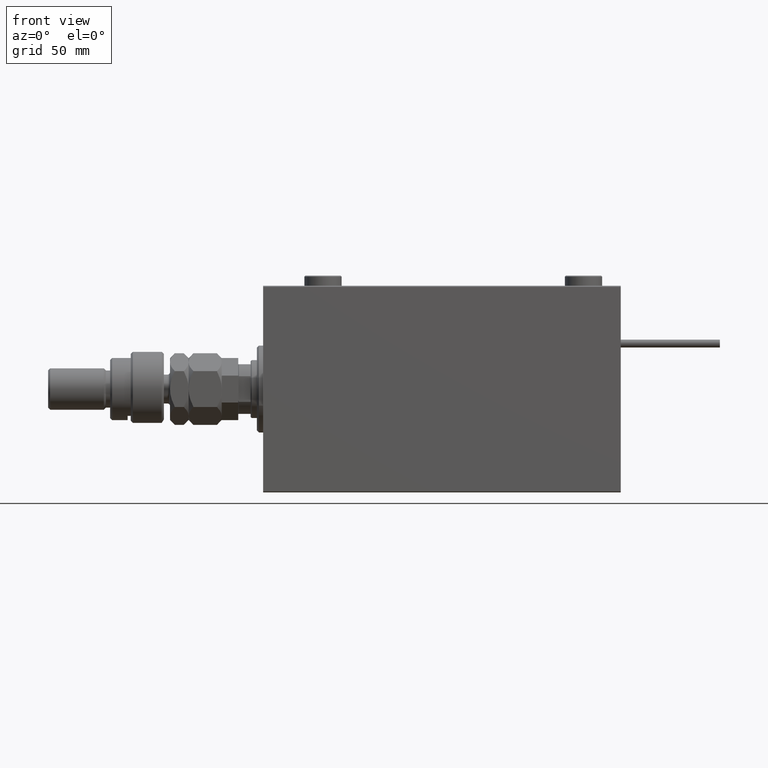
[diagram: clean part render]
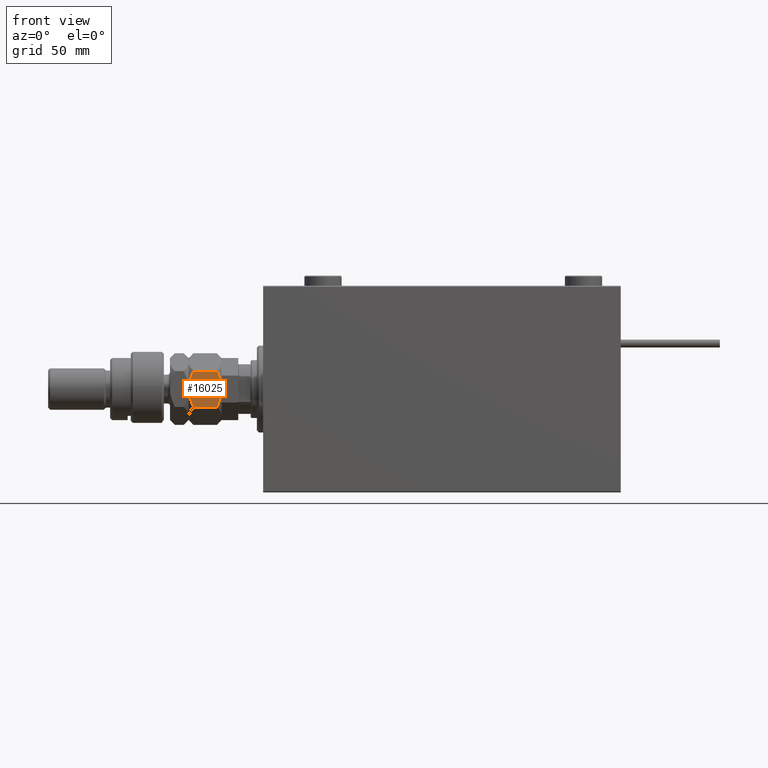
[diagram: same view with one face highlighted and labeled with its STEP entity id]
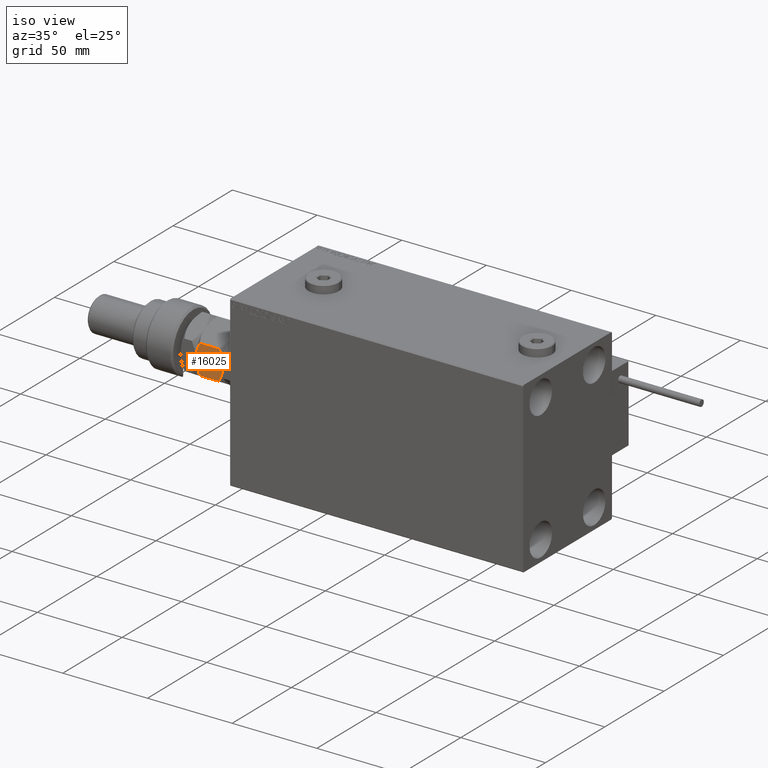
[diagram: same view with one face highlighted and labeled with its STEP entity id]
A machine part, front view. The second image highlights one B-rep face of the part: STEP entity #16025.
A second angle (iso view) of the same face is appended — the face is thin or edge-on in the first view.
In plain terms, the highlighted planar face has unit normal (0, 1, -0).
Its self-contained STEP definition (entity closure, byte-faithful):
#7 = LINE ( 'NONE', #4969, #49734 ) ;
#186 = CARTESIAN_POINT ( 'NONE',  ( 8.823580389329300999, -12.22621156269320331, 0.05953537397470176629 ) ) ;
#723 = CARTESIAN_POINT ( 'NONE',  ( 13.82389157469335750, -9.339280553791367012, 1.641481559741792884 ) ) ;
#746 = CARTESIAN_POINT ( 'NONE',  ( -2.796947266322166691E-15, -17.32050807568877104, 2.320508075688761718 ) ) ;
#984 = CARTESIAN_POINT ( 'NONE',  ( 15.00000000000000000, -8.660254037844389075, 2.320508075688767047 ) ) ;
#1349 = CARTESIAN_POINT ( 'NONE',  ( 7.499999999999993783, -12.99038105676658006, 16.00000000000000000 ) ) ;
#1560 = CARTESIAN_POINT ( 'NONE',  ( 4.913081180497406386, -14.48393933357810681, 0.2303299219392160313 ) ) ;
#3187 = EDGE_CURVE ( 'NONE', #19721, #53869, #35648, .T. ) ;
#4546 = CARTESIAN_POINT ( 'NONE',  ( 1.176108425306638505, -16.64148155974179488, 14.35851844025821755 ) ) ;
#4969 = CARTESIAN_POINT ( 'NONE',  ( 15.00000000000000000, -8.660254037844389075, 16.00000000000000000 ) ) ;
#5255 = DIRECTION ( 'NONE',  ( -0.8660254037844388186, -0.4999999999999996669, 0.000000000000000000 ) ) ;
#6013 = VECTOR ( 'NONE', #32910, 1000.000000000000000 ) ;
#7566 = CARTESIAN_POINT ( 'NONE',  ( -3.035766082959412415E-15, -17.32050807568877104, 16.00000000000000000 ) ) ;
#9386 = CARTESIAN_POINT ( 'NONE',  ( -3.035766082959412415E-15, -17.32050807568877104, 16.00000000000000000 ) ) ;
#10038 = ORIENTED_EDGE ( 'NONE', *, *, #11166, .F. ) ;
#10160 = ORIENTED_EDGE ( 'NONE', *, *, #3187, .F. ) ;
#11166 = EDGE_CURVE ( 'NONE', #53869, #20118, #51568, .T. ) ;
#11307 = ORIENTED_EDGE ( 'NONE', *, *, #26295, .F. ) ;
#12049 = EDGE_CURVE ( 'NONE', #14081, #19721, #7, .T. ) ;
#13200 = CARTESIAN_POINT ( 'NONE',  ( 12.61607045183964360, -10.03661640420387080, 14.93952096862912171 ) ) ;
#13666 = CARTESIAN_POINT ( 'NONE',  ( 7.499999999999994671, -12.99038105676658184, 0.000000000000000000 ) ) ;
#13895 = ORIENTED_EDGE ( 'NONE', *, *, #27859, .T. ) ;
#14081 = VERTEX_POINT ( 'NONE', #22831 ) ;
#15985 = ORIENTED_EDGE ( 'NONE', *, *, #41047, .F. ) ;
#16025 = ADVANCED_FACE ( 'NONE', ( #43261 ), #17640, .F. ) ;
#16835 = CARTESIAN_POINT ( 'NONE',  ( 7.499999999999994671, -12.99038105676658184, 0.000000000000000000 ) ) ;
#16935 = CARTESIAN_POINT ( 'NONE',  ( 4.881674457977372761, -14.50207201327941320, 15.71619733805371411 ) ) ;
#17474 = CARTESIAN_POINT ( 'NONE',  ( 6.176419610670694560, -13.75455055083996214, 15.94046462602530312 ) ) ;
#17640 = PLANE ( 'NONE',  #49892 ) ;
#17796 = CARTESIAN_POINT ( 'NONE',  ( 10.11832554202262102, -11.47869010025374870, 0.2838026619462938327 ) ) ;
#18259 = CARTESIAN_POINT ( 'NONE',  ( -2.796947266322166691E-15, -17.32050807568877104, 2.320508075688761718 ) ) ;
#18724 = CARTESIAN_POINT ( 'NONE',  ( 15.00000000000000000, -8.660254037844389075, 2.320508075688767047 ) ) ;
#19721 = VERTEX_POINT ( 'NONE', #18724 ) ;
#20118 = VERTEX_POINT ( 'NONE', #18259 ) ;
#22831 = CARTESIAN_POINT ( 'NONE',  ( 15.00000000000000000, -8.660254037844389075, 13.67949192431123961 ) ) ;
#24538 = VERTEX_POINT ( 'NONE', #30351 ) ;
#25525 = CARTESIAN_POINT ( 'NONE',  ( 12.62116548881249756, -10.03367478323606754, 1.064486067744006892 ) ) ;
#25876 = CARTESIAN_POINT ( 'NONE',  ( 15.00000000000000000, -8.660254037844389075, 13.67949192431123961 ) ) ;
#26295 = EDGE_CURVE ( 'NONE', #52081, #24538, #38458, .T. ) ;
#26735 = DIRECTION ( 'NONE',  ( -0.4999999999999996669, 0.8660254037844388186, 0.000000000000000000 ) ) ;
#27859 = EDGE_CURVE ( 'NONE', #52081, #20118, #49430, .T. ) ;
#29669 = B_SPLINE_CURVE_WITH_KNOTS ( 'NONE', 3,
 ( #1349, #30017, #35243, #13200, #42682, #25876 ),
 .UNSPECIFIED., .F., .F.,
 ( 4, 2, 4 ),
 ( 0.008977392552884447263, 0.01343452311421656532, 0.01789165367554868338 ),
 .UNSPECIFIED. ) ;
#30017 = CARTESIAN_POINT ( 'NONE',  ( 8.804550678576907430, -12.23719837131869248, 16.00000000000000000 ) ) ;
#30351 = CARTESIAN_POINT ( 'NONE',  ( 7.499999999999993783, -12.99038105676658006, 16.00000000000000000 ) ) ;
#30437 = CARTESIAN_POINT ( 'NONE',  ( 7.499999999999993783, -12.99038105676658006, 16.00000000000000000 ) ) ;
#32910 = DIRECTION ( 'NONE',  ( -0.000000000000000000, -0.000000000000000000, -1.000000000000000000 ) ) ;
#34914 = CARTESIAN_POINT ( 'NONE',  ( 7.499999999999994671, -12.99038105676658184, 0.000000000000000000 ) ) ;
#35243 = CARTESIAN_POINT ( 'NONE',  ( 10.08691881950258917, -11.49682277995505331, 15.76967007806078591 ) ) ;
#35648 = B_SPLINE_CURVE_WITH_KNOTS ( 'NONE', 3,
 ( #984, #723, #25525, #42873, #17796, #186, #46716, #13666 ),
 .UNSPECIFIED., .F., .F.,
 ( 4, 2, 2, 4 ),
 ( 2.544309033642853415E-07, 0.004488823491893907842, 0.006733108022389181456, 0.008977392552884455937 ),
 .UNSPECIFIED. ) ;
#36897 = CARTESIAN_POINT ( 'NONE',  ( -3.416099238086855886E-15, -17.32050807568877104, 13.67949192431124317 ) ) ;
#38458 = B_SPLINE_CURVE_WITH_KNOTS ( 'NONE', 3,
 ( #42544, #4546, #43091, #39239, #16935, #17474, #50558, #30437 ),
 .UNSPECIFIED., .F., .F.,
 ( 4, 2, 2, 4 ),
 ( 2.544309033646407248E-07, 0.004488823491893905240, 0.006733108022389175384, 0.008977392552884447263 ),
 .UNSPECIFIED. ) ;
#38488 = CARTESIAN_POINT ( 'NONE',  ( 1.174746544192159625, -16.64226784216984711, 1.642267842169777836 ) ) ;
#39239 = CARTESIAN_POINT ( 'NONE',  ( 4.247772349543483372, -14.86805556622359425, 15.55242859148698109 ) ) ;
#41047 = EDGE_CURVE ( 'NONE', #24538, #14081, #29669, .T. ) ;
#42544 = CARTESIAN_POINT ( 'NONE',  ( -3.416099238086855886E-15, -17.32050807568877104, 13.67949192431124317 ) ) ;
#42682 = CARTESIAN_POINT ( 'NONE',  ( 13.82525345580783416, -9.338494271363316557, 14.35773215783021861 ) ) ;
#42873 = CARTESIAN_POINT ( 'NONE',  ( 10.75222765045651308, -11.11270654730956586, 0.4475714085130263475 ) ) ;
#43091 = CARTESIAN_POINT ( 'NONE',  ( 2.378834511187501111, -15.94708733029709791, 14.93551393225600066 ) ) ;
#43261 = FACE_OUTER_BOUND ( 'NONE', #45313, .T. ) ;
#43446 = CARTESIAN_POINT ( 'NONE',  ( 6.195449321423083688, -13.74356374221447119, -1.770863548392988866E-15 ) ) ;
#45313 = EDGE_LOOP ( 'NONE', ( #10160, #52288, #15985, #11307, #13895, #10038 ) ) ;
#46716 = CARTESIAN_POINT ( 'NONE',  ( 8.156876182308243628, -12.61113341608666083, -1.722865014715246890E-15 ) ) ;
#49430 = LINE ( 'NONE', #7566, #6013 ) ;
#49734 = VECTOR ( 'NONE', #50151, 1000.000000000000000 ) ;
#49892 = AXIS2_PLACEMENT_3D ( 'NONE', #9386, #26735, #5255 ) ;
#50151 = DIRECTION ( 'NONE',  ( -0.000000000000000000, -0.000000000000000000, -1.000000000000000000 ) ) ;
#50558 = CARTESIAN_POINT ( 'NONE',  ( 6.843123817691747490, -13.36962869744650284, 16.00000000000000711 ) ) ;
#51568 = B_SPLINE_CURVE_WITH_KNOTS ( 'NONE', 3,
 ( #34914, #43446, #1560, #51986, #38488, #746 ),
 .UNSPECIFIED., .F., .F.,
 ( 4, 2, 4 ),
 ( 0.008977392552884455937, 0.01343452311421657053, 0.01789165367554868685 ),
 .UNSPECIFIED. ) ;
#51986 = CARTESIAN_POINT ( 'NONE',  ( 2.383929548160349299, -15.94414570932928576, 1.060479031370876957 ) ) ;
#52081 = VERTEX_POINT ( 'NONE', #36897 ) ;
#52288 = ORIENTED_EDGE ( 'NONE', *, *, #12049, .F. ) ;
#53869 = VERTEX_POINT ( 'NONE', #16835 ) ;